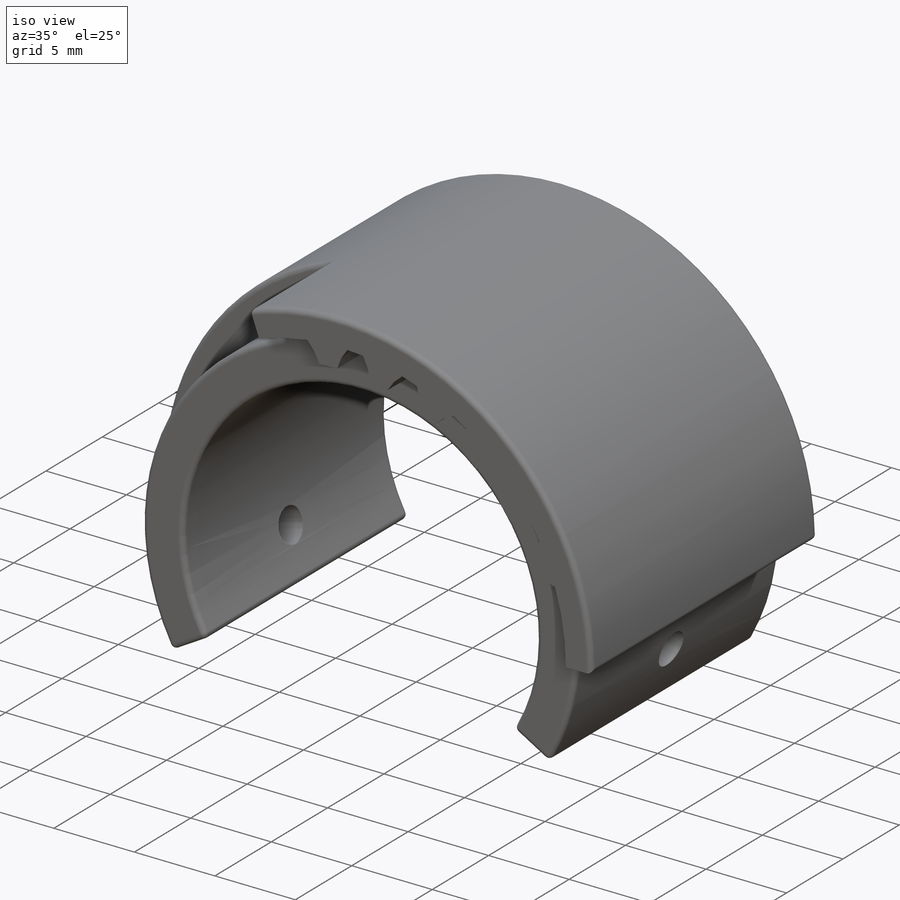
[diagram: iso view]
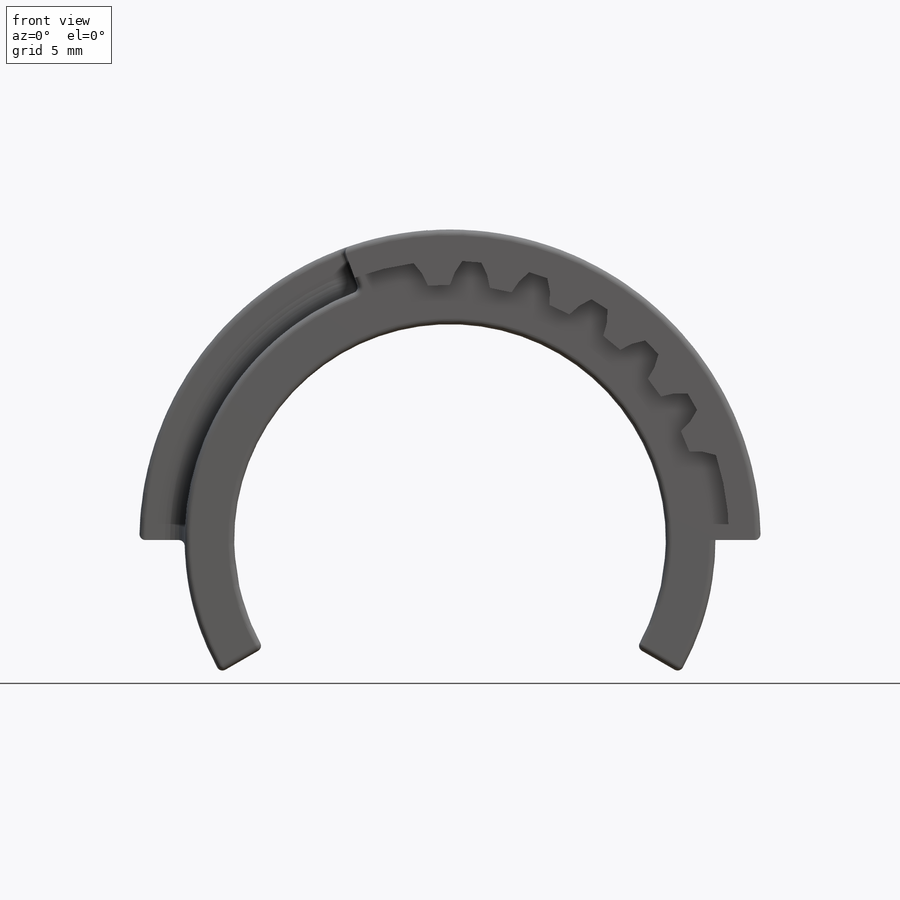
[diagram: front view]
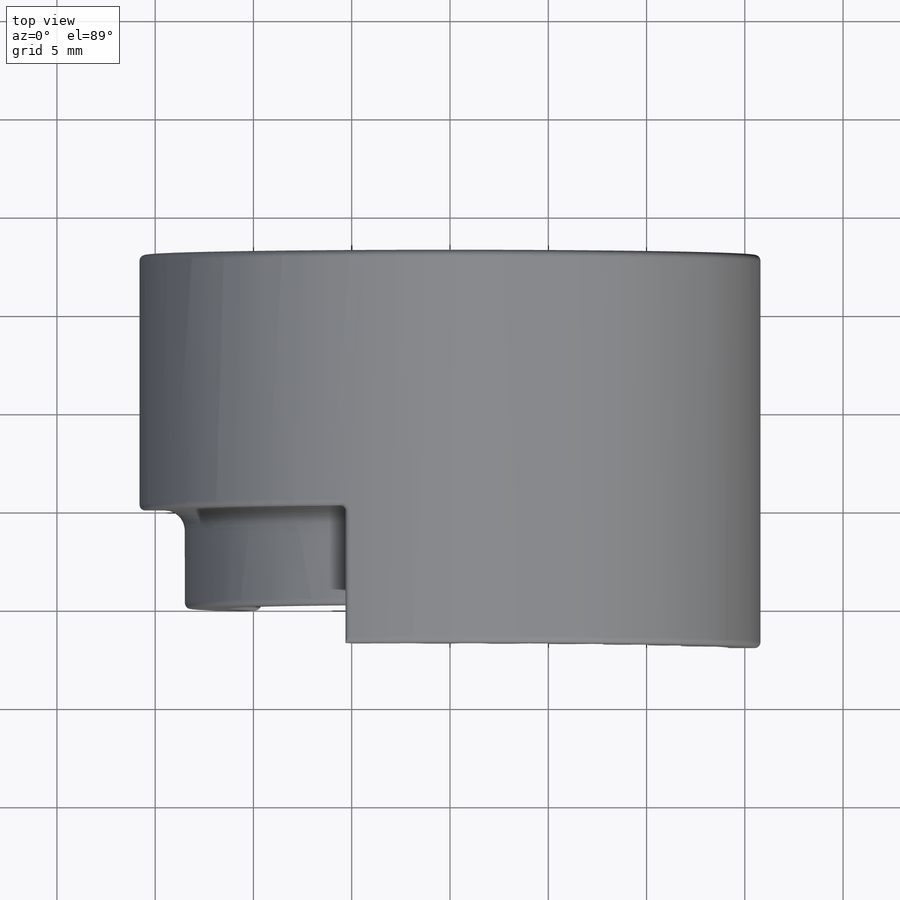
[diagram: top view]
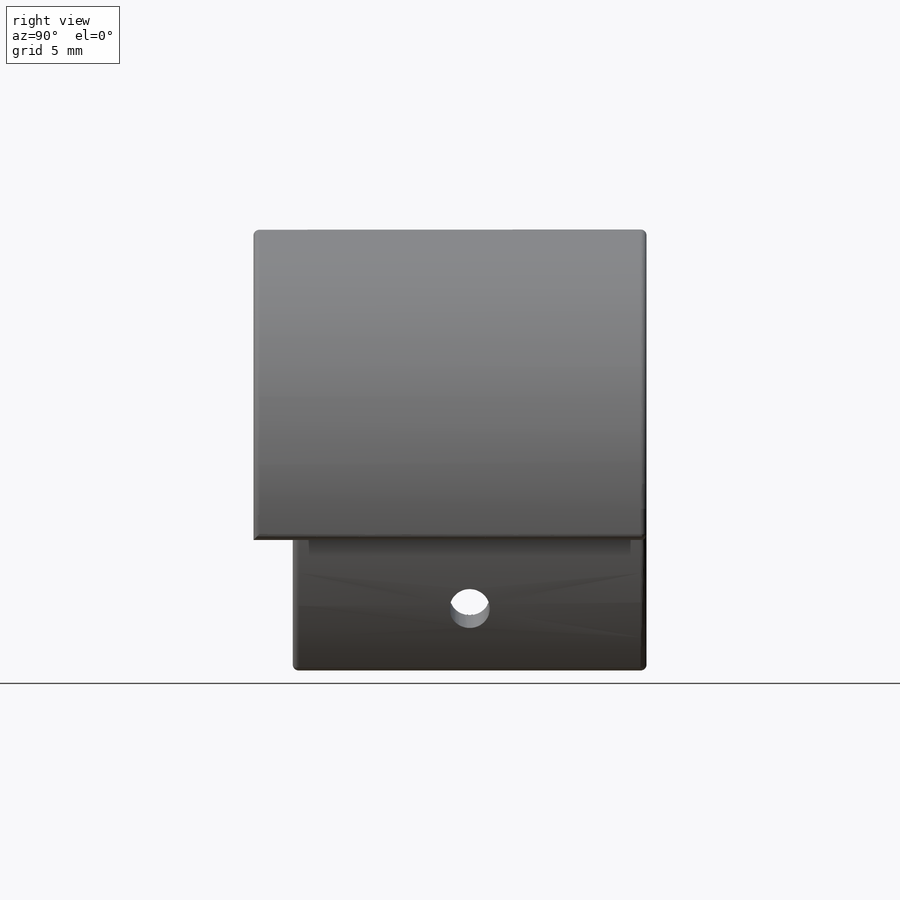
[diagram: right view]
SOLIDWORKS PART (.sldprt)
format: sldprt  version: not decoded by parser v0  size: 677,888 bytes
history: native  units: mm
features: sketch x10, extrude x3, cut_extrude x3, hole x3, plane x2, material x1, fillet x1 (+12 scaffold rows collapsed)
feature tree (35):
  scaffold x12  (default folders/planes/origin — collapsed)
  material  "ABS"
  sketch  "Esquisse1"  dims[c1.D4=14.2mm c1.D1=14.2mm c1.D3=12.975mm c2.D1=31.6mm c2.D2=25.96mm c3.D1=14.2mm c3.D2=14.2mm c3.D3=~10.040916mm c4.D3=45.0deg c4.D4=~2.001693mm]
  extrude  "Boss.-Extru.1"  Depth=2mm
  sketch  "Esquisse4"  dims[c1.D2=14.2mm c1.D3=14.2mm c1.D1=~14.208045mm c2.D3=14.2mm c2.D4=12.98mm c2.D5=3.0mm c2.D6=3.0mm c2.D7=3.0mm c2.D1=1.36mm c2.D2=1.36mm c3.D4=~0.968854mm c3.D7=~12.572466mm c3.D8=~23.675988mm c4.D8=~13.953182deg c4.D10=13.95deg c4.D1=~4.995034deg c4.D3=~6.453863deg c4.D4=~4.428171deg c4.D5=~7.732667deg c5.D1=0.0mm c5.D9=7.0]
  cut_extrude  "Enlèv. mat.-Extru.1"  Depth=2.5mm
  sketch  "Esquisse5"  dims[c1.D1=~0.628609mm c1.D2=~13.781002mm c2.D2=20.0deg]
  cut_extrude  "Enlèv. mat.-Extru.2"  [1 undecoded]
  sketch  "Esquisse6"  dims[D1=21.96mm D2=29.0mm]
  extrude  "Boss.-Extru.3"  Depth=18mm
  sketch  "Esquisse11"  dims[c1.D1=27.0mm c1.D2=~7.854273mm c2.D2=120.0deg c2.D3=5.49mm]
  extrude  "Boss.-Extru.5"  Depth=18mm
  plane  "Plan2"
  hole  "Trou pour taraudage pour trou taraudé M2.51"  Diameter=2.05mm Depth=2.52mm
  sketch  "Esquisse15"  dims[D1=9.0mm D2=~3.494057mm]
  sketch  "Esquisse16"  dims[hole-wizard template sketch: 59 standard entries collapsed; hole parameters kept: c18.Diamètre du perçage jusqu'au prochain=2.05mm c18.Profondeur du perçage jusqu'au prochain=2.52mm]
  plane  "Plan3"
  sketch  "Esquisse18"  dims[D1=~3.494057mm D2=9.0mm]
  sketch  "Esquisse17"  dims[hole-wizard template sketch: 59 standard entries collapsed; hole parameters kept: c18.Diamètre du perçage jusqu'au prochain=2.05mm c18.Profondeur du perçage jusqu'au prochain=2.52mm]
  fillet  "Congé1"  Radius=0.3mm
  sketch  "Esquisse19"
  cut_extrude  "Enlèv. mat.-Extru.3"  Depth=5mm
  hole  "Congé2"  Diameter=1mm
  hole  "Congé3"  Diameter=0.3mm
decode coverage: 18 of 20 modeling features carry decoded parameters
note: ~ marks probable driven/reference dimensions
note: 1 parameter value undecoded
note: suppression state not decoded; provenance and decode notes live in map.json
